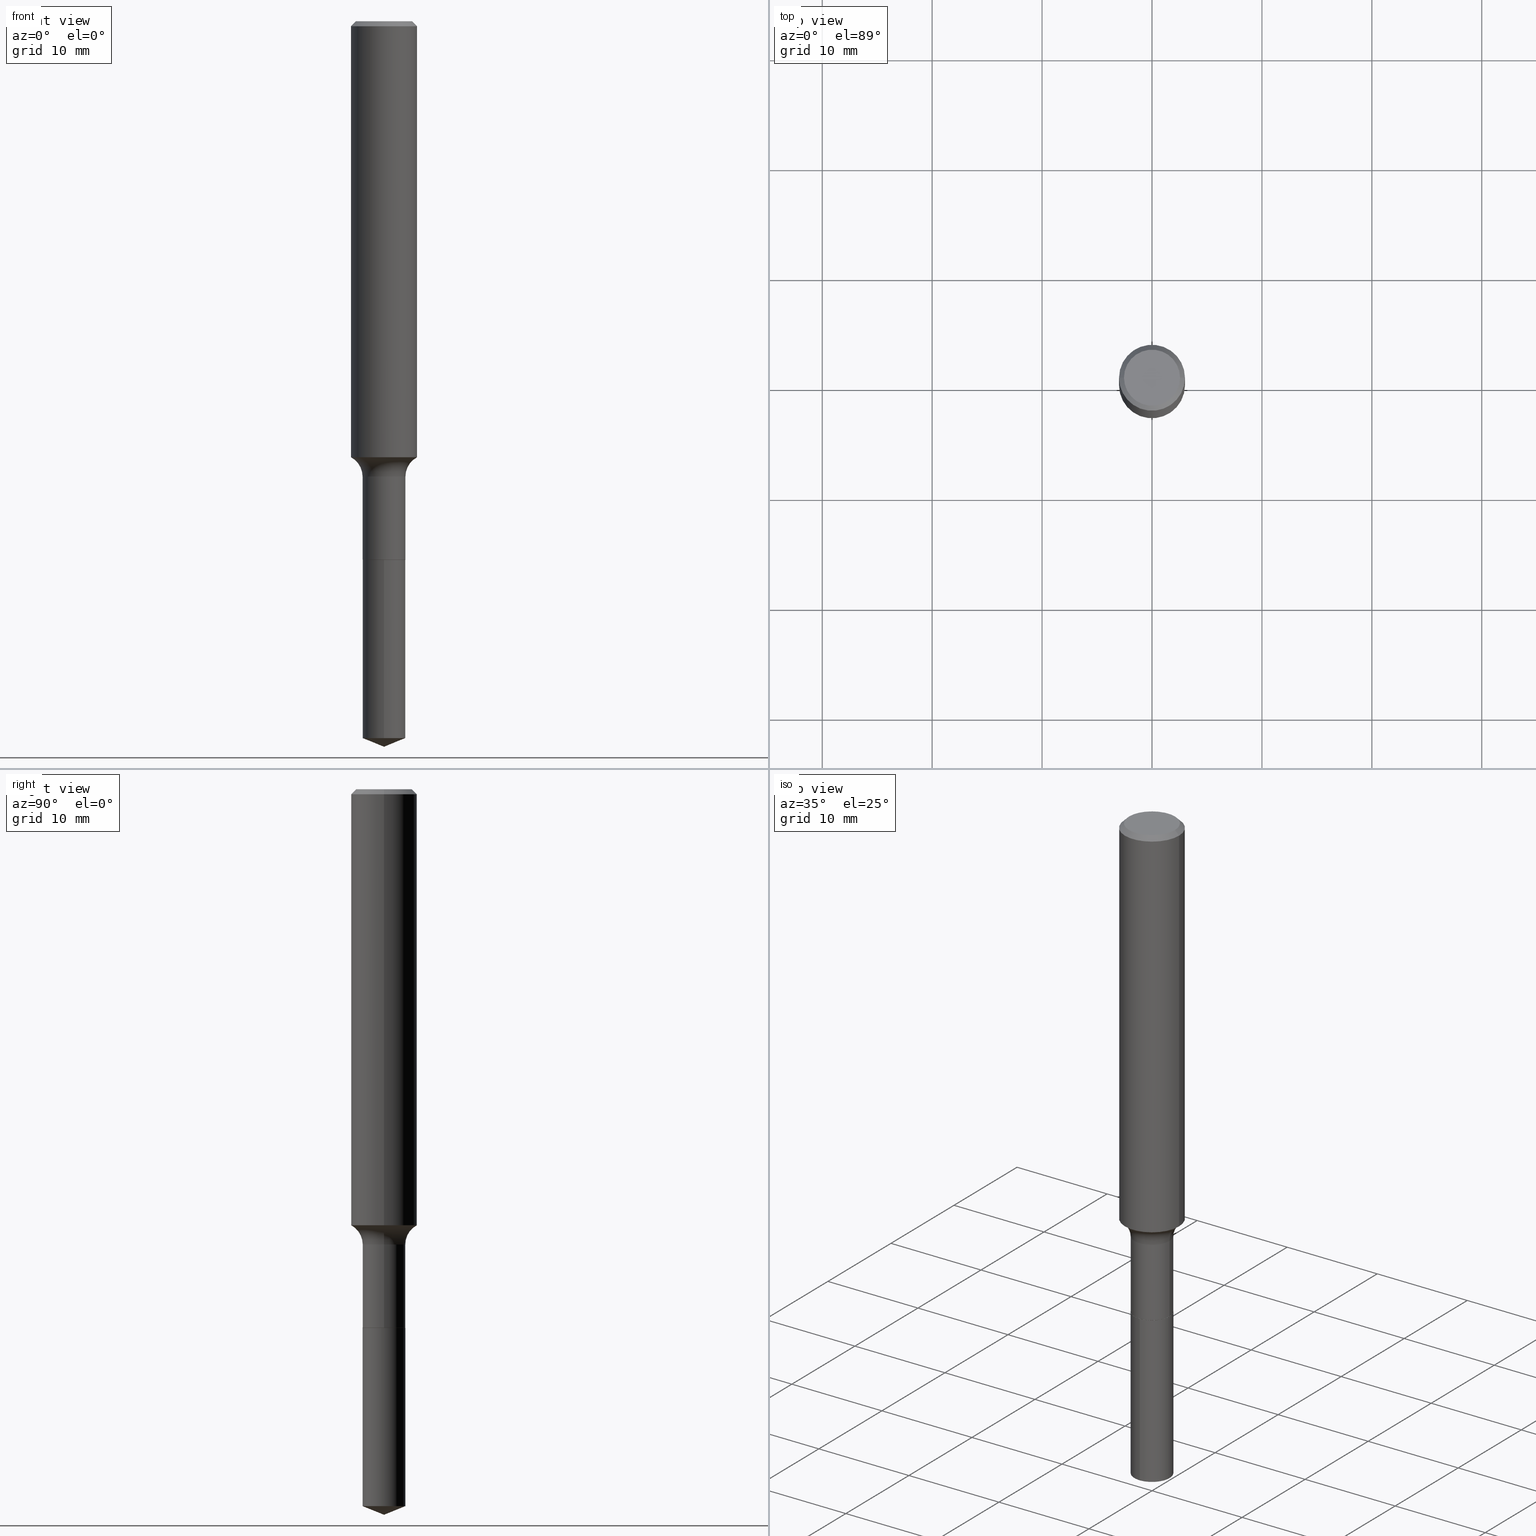
[diagram: canonical four-view strip — front | top / right | iso, engineering-drawing reading convention]
A machine part, canonical four-view strip (front | top / right | iso — engineering-drawing reading convention). The complete STEP part file that produces these views, byte-faithful:
ISO-10303-21;
HEADER;
FILE_DESCRIPTION (( 'STEP AP203' ),
    '1' );
FILE_NAME ('69129.STEP',
    '2024-04-19T17:16:34',
    ( '' ),
    ( '' ),
    'SwSTEP 2.0',
    'SolidWorks 2023',
    '' );
FILE_SCHEMA (( 'CONFIG_CONTROL_DESIGN' ));
ENDSEC;

DATA;
#1 = PRODUCT_DEFINITION_SHAPE ( 'NONE', 'NONE',  #196 ) ;
#2 = DIRECTION ( 'NONE',  ( -6.982962677686266711E-15, -1.000000000000000000, 3.491481338843145583E-15 ) ) ;
#3 = ORIENTED_EDGE ( 'NONE', *, *, #221, .F. ) ;
#4 = APPROVAL ( #119, 'UNSPECIFIED' ) ;
#5 = DIRECTION ( 'NONE',  ( 1.000000000000000000, -6.982962677686266711E-15, 0.000000000000000000 ) ) ;
#6 = DIRECTION ( 'NONE',  ( -6.982962677686265133E-15, -1.000000000000000000, 0.000000000000000000 ) ) ;
#7 = APPLICATION_PROTOCOL_DEFINITION ( 'international standard', 'config_control_design', 1994, #204 ) ;
#8 = CONICAL_SURFACE ( 'NONE', #468, 0.1180999999999999966, 0.7853981633974456145 ) ;
#9 = CLOSED_SHELL ( 'NONE', ( #78, #341, #273, #379, #406 ) ) ;
#10 = CYLINDRICAL_SURFACE ( 'NONE', #41, 0.07675000000000001266 ) ;
#11 = CC_DESIGN_APPROVAL ( #111, ( #176 ) ) ;
#12 = ORIENTED_EDGE ( 'NONE', *, *, #66, .T. ) ;
#13 = VERTEX_POINT ( 'NONE', #239 ) ;
#14 = DIRECTION ( 'NONE',  ( -2.445468806185136597E-29, 3.491481338843145583E-15, 1.000000000000000000 ) ) ;
#15 = CC_DESIGN_PERSON_AND_ORGANIZATION_ASSIGNMENT ( #96, #470, ( #176 ) ) ;
#16 = CALENDAR_DATE ( 2024, 19, 4 ) ;
#17 = CARTESIAN_POINT ( 'NONE',  ( -0.07674999999999997102, -5.667924066842443085E-15, -1.630500000000000060 ) ) ;
#18 = CIRCLE ( 'NONE', #169, 0.07674999999999999878 ) ;
#19 = VECTOR ( 'NONE', #229, 39.37007874015748143 ) ;
#20 = DIRECTION ( 'NONE',  ( -2.445468806185136597E-29, 3.491481338843145583E-15, 1.000000000000000000 ) ) ;
#21 = ORIENTED_EDGE ( 'NONE', *, *, #459, .T. ) ;
#22 = ADVANCED_FACE ( 'NONE', ( #396 ), #8, .T. ) ;
#23 = DIRECTION ( 'NONE',  ( -2.438088387897960049E-29, 3.491481338843145188E-15, 1.000000000000000000 ) ) ;
#24 = VERTEX_POINT ( 'NONE', #164 ) ;
#25 = DIRECTION ( 'NONE',  ( 1.000000000000000000, -6.982962677686273021E-15, 0.000000000000000000 ) ) ;
#26 = CONICAL_SURFACE ( 'NONE', #305, 97.44436430772901758, 1.186823891356147076 ) ;
#27 = LOCAL_TIME ( 13, 16, 34.00000000000000000, #324 ) ;
#28 = CARTESIAN_POINT ( 'NONE',  ( -8.928514629775024414E-28, 1.293024954018170944E-13, 36.77167874015748339 ) ) ;
#29 = ADVANCED_FACE ( 'NONE', ( #278 ), #388, .T. ) ;
#30 = CYLINDRICAL_SURFACE ( 'NONE', #322, 0.1181000000000001077 ) ;
#31 = FACE_OUTER_BOUND ( 'NONE', #492, .T. ) ;
#32 = ORIENTED_EDGE ( 'NONE', *, *, #52, .T. ) ;
#33 = AXIS2_PLACEMENT_3D ( 'NONE', #477, #408, #220 ) ;
#34 = LOCAL_TIME ( 13, 16, 34.00000000000000000, #246 ) ;
#35 = CARTESIAN_POINT ( 'NONE',  ( 4.717553874011746679E-29, -6.735416650762311704E-15, -1.929099999999999815 ) ) ;
#36 = EDGE_CURVE ( 'NONE', #24, #48, #313, .T. ) ;
#37 = CARTESIAN_POINT ( 'NONE',  ( -0.1180999999999999966, 7.628363003171413738E-16, -0.01771500000000010566 ) ) ;
#38 = ORIENTED_EDGE ( 'NONE', *, *, #454, .T. ) ;
#39 = DIRECTION ( 'NONE',  ( -2.445468806185136597E-29, 3.491481338843145583E-15, 1.000000000000000000 ) ) ;
#40 = EDGE_LOOP ( 'NONE', ( #148, #301, #240, #113 ) ) ;
#41 = AXIS2_PLACEMENT_3D ( 'NONE', #433, #283, #162 ) ;
#42 = FACE_OUTER_BOUND ( 'NONE', #394, .T. ) ;
#43 = AXIS2_PLACEMENT_3D ( 'NONE', #270, #109, #413 ) ;
#44 = ADVANCED_FACE ( 'NONE', ( #167 ), #321, .T. ) ;
#45 = APPROVAL_DATE_TIME ( #200, #4 ) ;
#46 = CARTESIAN_POINT ( 'NONE',  ( -5.359423855123736897E-16, -0.07675000000000672951, -1.929099999999999593 ) ) ;
#47 = DIRECTION ( 'NONE',  ( -2.445468806185136597E-29, 3.491481338843145583E-15, 1.000000000000000000 ) ) ;
#48 = VERTEX_POINT ( 'NONE', #426 ) ;
#49 = AXIS2_PLACEMENT_3D ( 'NONE', #201, #87, #89 ) ;
#50 = AXIS2_PLACEMENT_3D ( 'NONE', #116, #420, #79 ) ;
#51 = FACE_OUTER_BOUND ( 'NONE', #136, .T. ) ;
#52 = EDGE_CURVE ( 'NONE', #48, #24, #490, .T. ) ;
#53 = CARTESIAN_POINT ( 'NONE',  ( -0.1547499999999999709, -4.593295439394994118E-15, -1.630500000000000060 ) ) ;
#54 = SECURITY_CLASSIFICATION_LEVEL ( 'unclassified' ) ;
#55 = FACE_OUTER_BOUND ( 'NONE', #371, .T. ) ;
#56 = ADVANCED_FACE ( 'NONE', ( #51 ), #347, .T. ) ;
#57 = ORIENTED_EDGE ( 'NONE', *, *, #399, .T. ) ;
#58 = CALENDAR_DATE ( 2024, 19, 4 ) ;
#59 = DESIGN_CONTEXT ( 'detailed design', #143, 'design' ) ;
#60 = DIRECTION ( 'NONE',  ( -6.982962677686265133E-15, -1.000000000000000000, 3.498761904101806258E-15 ) ) ;
#61 = AXIS2_PLACEMENT_3D ( 'NONE', #416, #349, #338 ) ;
#62 = EDGE_CURVE ( 'NONE', #327, #13, #409, .T. ) ;
#63 = DIRECTION ( 'NONE',  ( 0.7071067811866199593, -2.468850131083015945E-15, 0.7071067811864750752 ) ) ;
#64 = ORIENTED_EDGE ( 'NONE', *, *, #317, .T. ) ;
#65 = CARTESIAN_POINT ( 'NONE',  ( 0.07674999999999999878, -7.269613295605313095E-15, -1.928600000000000092 ) ) ;
#66 = EDGE_CURVE ( 'NONE', #193, #400, #128, .T. ) ;
#67 = CARTESIAN_POINT ( 'NONE',  ( 4.717553874011746679E-29, -6.735416650762311704E-15, -1.929099999999999815 ) ) ;
#68 = VERTEX_POINT ( 'NONE', #17 ) ;
#69 = VECTOR ( 'NONE', #370, 39.37007874015748143 ) ;
#70 = DIRECTION ( 'NONE',  ( -2.445468806185136597E-29, 3.491481338843145583E-15, 1.000000000000000000 ) ) ;
#71 = CARTESIAN_POINT ( 'NONE',  ( -0.07674999999999998490, 5.453415496958767854E-16, -3.775282681770638931E-30 ) ) ;
#72 = CARTESIAN_POINT ( 'NONE',  ( 0.1181000000000001077, -8.246878922347488542E-16, 5.758764772215005345E-30 ) ) ;
#73 = ORIENTED_EDGE ( 'NONE', *, *, #373, .T. ) ;
#74 = CC_DESIGN_PERSON_AND_ORGANIZATION_ASSIGNMENT ( #355, #458, ( #196 ) ) ;
#75 = CIRCLE ( 'NONE', #144, 0.07674999999999999878 ) ;
#76 = DIRECTION ( 'NONE',  ( -2.445468806185136597E-29, 3.491481338843145583E-15, 1.000000000000000000 ) ) ;
#77 = APPROVAL_DATE_TIME ( #168, #111 ) ;
#78 = ADVANCED_FACE ( 'NONE', ( #158 ), #10, .T. ) ;
#79 = DIRECTION ( 'NONE',  ( 1.000000000000000000, -6.982962677686266711E-15, 0.000000000000000000 ) ) ;
#80 = DIRECTION ( 'NONE',  ( 7.105427357601001859E-15, 1.000000000000000000, -3.491481338843145583E-15 ) ) ;
#81 = CIRCLE ( 'NONE', #115, 0.1180999999999999966 ) ;
#82 = CIRCLE ( 'NONE', #451, 0.07674999999999999878 ) ;
#83 = LOCAL_TIME ( 13, 16, 34.00000000000000000, #207 ) ;
#84 = SHAPE_DEFINITION_REPRESENTATION ( #1, #203 ) ;
#85 = CARTESIAN_POINT ( 'NONE',  ( 0.000000000000000000, 0.000000000000000000, 0.000000000000000000 ) ) ;
#86 = APPROVAL_STATUS ( 'not_yet_approved' ) ;
#87 = DIRECTION ( 'NONE',  ( -2.428961463615744039E-29, 3.515120792942106906E-15, 1.000000000000000000 ) ) ;
#88 = LENGTH_MEASURE_WITH_UNIT ( LENGTH_MEASURE( 0.02539999999999999897 ), #248 );
#89 = DIRECTION ( 'NONE',  ( -6.982962677686265133E-15, -1.000000000000000000, 0.000000000000000000 ) ) ;
#90 = PERSON_AND_ORGANIZATION ( #381, #393 ) ;
#91 = AXIS2_PLACEMENT_3D ( 'NONE', #410, #369, #374 ) ;
#92 = ORIENTED_EDGE ( 'NONE', *, *, #94, .T. ) ;
#93 = PERSON_AND_ORGANIZATION_ROLE ( 'design_supplier' ) ;
#94 = EDGE_CURVE ( 'NONE', #120, #132, #75, .T. ) ;
#95 = CARTESIAN_POINT ( 'NONE',  ( 4.716331139608654438E-29, -6.733670910092890989E-15, -1.928600000000000092 ) ) ;
#96 = PERSON_AND_ORGANIZATION ( #381, #393 ) ;
#97 = LINE ( 'NONE', #402, #159 ) ;
#98 = ADVANCED_FACE ( 'NONE', ( #55 ), #331, .T. ) ;
#99 = VERTEX_POINT ( 'NONE', #46 ) ;
#100 = DIRECTION ( 'NONE',  ( -2.428961463615744039E-29, 3.515120792942106906E-15, 1.000000000000000000 ) ) ;
#101 = CIRCLE ( 'NONE', #50, 0.07624999999999999833 ) ;
#102 = DIRECTION ( 'NONE',  ( 1.000000000000000000, -6.982962677686268288E-15, 0.000000000000000000 ) ) ;
#103 = ADVANCED_FACE ( 'NONE', ( #195 ), #442, .F. ) ;
#104 = DIRECTION ( 'NONE',  ( 1.000000000000000000, -6.982962677686268288E-15, 4.883557194083113462E-29 ) ) ;
#105 = ORIENTED_EDGE ( 'NONE', *, *, #256, .F. ) ;
#106 = EDGE_CURVE ( 'NONE', #449, #99, #261, .T. ) ;
#107 = CARTESIAN_POINT ( 'NONE',  ( 5.453415496959241170E-16, 0.07674999999999326805, -1.929100000000000259 ) ) ;
#108 = CIRCLE ( 'NONE', #332, 0.07799999999999999989 ) ;
#109 = DIRECTION ( 'NONE',  ( 2.428961463615743758E-29, -3.515120792942106906E-15, -1.000000000000000000 ) ) ;
#110 = CARTESIAN_POINT ( 'NONE',  ( 0.1181000000000001909, -6.277148188467687568E-15, -1.561646695794609796 ) ) ;
#111 = APPROVAL ( #434, 'UNSPECIFIED' ) ;
#112 = CARTESIAN_POINT ( 'NONE',  ( -8.928514629775024414E-28, 1.293024954018170944E-13, 36.77167874015748339 ) ) ;
#113 = ORIENTED_EDGE ( 'NONE', *, *, #245, .F. ) ;
#114 = AXIS2_PLACEMENT_3D ( 'NONE', #479, #23, #175 ) ;
#115 = AXIS2_PLACEMENT_3D ( 'NONE', #155, #428, #463 ) ;
#116 = CARTESIAN_POINT ( 'NONE',  ( 4.717553874011746679E-29, -6.735416650762311704E-15, -1.929099999999999815 ) ) ;
#117 = ORIENTED_EDGE ( 'NONE', *, *, #106, .F. ) ;
#118 = FACE_OUTER_BOUND ( 'NONE', #486, .T. ) ;
#119 = APPROVAL_STATUS ( 'not_yet_approved' ) ;
#120 = VERTEX_POINT ( 'NONE', #65 ) ;
#121 = AXIS2_PLACEMENT_3D ( 'NONE', #179, #70, #104 ) ;
#122 = APPROVAL_ROLE ( '' ) ;
#123 = VECTOR ( 'NONE', #265, 39.37007874015748854 ) ;
#124 = ORIENTED_EDGE ( 'NONE', *, *, #237, .F. ) ;
#125 = VERTEX_POINT ( 'NONE', #174 ) ;
#126 = ADVANCED_FACE ( 'NONE', ( #296 ), #30, .T. ) ;
#127 = APPLICATION_PROTOCOL_DEFINITION ( 'international standard', 'config_control_design', 1994, #143 ) ;
#128 = LINE ( 'NONE', #429, #226 ) ;
#129 = EDGE_CURVE ( 'NONE', #48, #99, #361, .T. ) ;
#130 = APPROVAL_ROLE ( '' ) ;
#131 = CIRCLE ( 'NONE', #462, 0.1003850000000000159 ) ;
#132 = VERTEX_POINT ( 'NONE', #337 ) ;
#133 = EDGE_CURVE ( 'NONE', #132, #120, #18, .T. ) ;
#134 = DATE_TIME_ROLE ( 'classification_date' ) ;
#135 = DIRECTION ( 'NONE',  ( 2.445468806185136597E-29, -3.491481338843145583E-15, -1.000000000000000000 ) ) ;
#136 = EDGE_LOOP ( 'NONE', ( #178, #414, #180, #223 ) ) ;
#137 = CARTESIAN_POINT ( 'NONE',  ( 0.07624999999999999833, -7.267867554935889225E-15, -1.929099999999999815 ) ) ;
#138 = FACE_OUTER_BOUND ( 'NONE', #40, .T. ) ;
#139 = CIRCLE ( 'NONE', #292, 0.1003850000000000159 ) ;
#140 = ORIENTED_EDGE ( 'NONE', *, *, #450, .F. ) ;
#141 = FACE_OUTER_BOUND ( 'NONE', #464, .T. ) ;
#142 = CARTESIAN_POINT ( 'NONE',  ( 4.717553874011746679E-29, -6.735416650762311704E-15, -1.929099999999999815 ) ) ;
#143 = APPLICATION_CONTEXT ( 'configuration controlled 3d designs of mechanical parts and assemblies' ) ;
#144 = AXIS2_PLACEMENT_3D ( 'NONE', #95, #391, #249 ) ;
#145 = APPROVAL_PERSON_ORGANIZATION ( #251, #111, #401 ) ;
#146 = ADVANCED_FACE ( 'NONE', ( #141 ), #252, .F. ) ;
#147 = CARTESIAN_POINT ( 'NONE',  ( 5.453415496959397956E-16, 0.07674999999999326805, -1.929100000000000259 ) ) ;
#148 = ORIENTED_EDGE ( 'NONE', *, *, #427, .F. ) ;
#149 = LINE ( 'NONE', #344, #19 ) ;
#150 = ORIENTED_EDGE ( 'NONE', *, *, #106, .T. ) ;
#151 = DIRECTION ( 'NONE',  ( -0.7071067811866199593, 7.493145998870616062E-15, 0.7071067811864750752 ) ) ;
#152 = AXIS2_PLACEMENT_3D ( 'NONE', #242, #135, #326 ) ;
#153 = CARTESIAN_POINT ( 'NONE',  ( 6.375660570259202509E-29, -9.042484126576158493E-15, -2.598399999999999821 ) ) ;
#154 = PRODUCT ( '69129', '69129', '', ( #235 ) ) ;
#155 = CARTESIAN_POINT ( 'NONE',  ( 4.332147990156995868E-31, -6.185159191760669162E-17, -0.01771500000000010566 ) ) ;
#156 = ORIENTED_EDGE ( 'NONE', *, *, #454, .F. ) ;
#157 = PERSON_AND_ORGANIZATION ( #381, #393 ) ;
#158 = FACE_OUTER_BOUND ( 'NONE', #368, .T. ) ;
#159 = VECTOR ( 'NONE', #172, 39.37007874015748143 ) ;
#160 = CARTESIAN_POINT ( 'NONE',  ( 4.717553874011746679E-29, -6.735416650762311704E-15, -1.929099999999999815 ) ) ;
#161 = EDGE_CURVE ( 'NONE', #24, #449, #481, .T. ) ;
#162 = DIRECTION ( 'NONE',  ( -6.982962677686265133E-15, -1.000000000000000000, 3.559411066663534686E-15 ) ) ;
#163 = DIRECTION ( 'NONE',  ( -2.445468806185136597E-29, 3.491481338843145583E-15, 1.000000000000000000 ) ) ;
#164 = CARTESIAN_POINT ( 'NONE',  ( 5.453415496959396970E-16, 0.07674999999999104761, -2.567390987167151639 ) ) ;
#165 = ORIENTED_EDGE ( 'NONE', *, *, #269, .F. ) ;
#166 = COORDINATED_UNIVERSAL_TIME_OFFSET ( 5, 0, .BEHIND. ) ;
#167 = FACE_OUTER_BOUND ( 'NONE', #380, .T. ) ;
#168 = DATE_AND_TIME ( #16, #83 ) ;
#169 = AXIS2_PLACEMENT_3D ( 'NONE', #330, #259, #25 ) ;
#170 = LOCAL_TIME ( 13, 16, 34.00000000000000000, #166 ) ;
#171 = CARTESIAN_POINT ( 'NONE',  ( 4.717553874011746679E-29, -6.735416650762311704E-15, -1.929099999999999815 ) ) ;
#172 = DIRECTION ( 'NONE',  ( -2.445468806185136877E-29, 3.491481338843145188E-15, 1.000000000000000000 ) ) ;
#173 = ORIENTED_EDGE ( 'NONE', *, *, #317, .F. ) ;
#174 = CARTESIAN_POINT ( 'NONE',  ( 0.07674999999999997102, -6.228802708496169280E-15, -1.630500000000000060 ) ) ;
#175 = DIRECTION ( 'NONE',  ( 1.000000000000000000, -6.982962677686265922E-15, 4.876176775795935793E-29 ) ) ;
#176 = SECURITY_CLASSIFICATION ( '', '', #54 ) ;
#177 = DIRECTION ( 'NONE',  ( -2.445468806185136597E-29, 3.491481338843145583E-15, 1.000000000000000000 ) ) ;
#178 = ORIENTED_EDGE ( 'NONE', *, *, #66, .F. ) ;
#179 = CARTESIAN_POINT ( 'NONE',  ( 3.987336888484864983E-29, -5.692860322983748752E-15, -1.630500000000000060 ) ) ;
#180 = ORIENTED_EDGE ( 'NONE', *, *, #359, .T. ) ;
#181 = ADVANCED_FACE ( 'NONE', ( #138 ), #258, .T. ) ;
#182 = DIRECTION ( 'NONE',  ( 1.000000000000000000, -6.982962677686268288E-15, 4.883557194083113462E-29 ) ) ;
#183 = CIRCLE ( 'NONE', #33, 0.07674999999999997102 ) ;
#184 = CIRCLE ( 'NONE', #339, 0.07674999999999997102 ) ;
#185 = PLANE ( 'NONE',  #61 ) ;
#186 = ORIENTED_EDGE ( 'NONE', *, *, #129, .T. ) ;
#187 = DIRECTION ( 'NONE',  ( -2.428961463615744039E-29, 3.515120792942106906E-15, 1.000000000000000000 ) ) ;
#188 = EDGE_LOOP ( 'NONE', ( #419, #150 ) ) ;
#189 = EDGE_CURVE ( 'NONE', #421, #193, #139, .T. ) ;
#190 = VERTEX_POINT ( 'NONE', #333 ) ;
#191 = AXIS2_PLACEMENT_3D ( 'NONE', #53, #80, #342 ) ;
#192 = DIRECTION ( 'NONE',  ( -6.982962677686265133E-15, -1.000000000000000000, 3.498761904101806258E-15 ) ) ;
#193 = VERTEX_POINT ( 'NONE', #297 ) ;
#194 = DIRECTION ( 'NONE',  ( 1.000000000000000000, -6.982962677686266711E-15, 4.875668750515085695E-29 ) ) ;
#195 = FACE_OUTER_BOUND ( 'NONE', #461, .T. ) ;
#196 = PRODUCT_DEFINITION ( 'UNKNOWN', '', #228, #59 ) ;
#197 = DIRECTION ( 'NONE',  ( 1.000000000000000000, -6.982962677686268288E-15, 0.000000000000000000 ) ) ;
#198 = PERSON_AND_ORGANIZATION ( #381, #393 ) ;
#199 = ORIENTED_EDGE ( 'NONE', *, *, #129, .F. ) ;
#200 = DATE_AND_TIME ( #395, #34 ) ;
#201 = CARTESIAN_POINT ( 'NONE',  ( 6.267938084414010442E-29, -8.979086571701111052E-15, -2.567390987167151639 ) ) ;
#202 = EDGE_CURVE ( 'NONE', #120, #125, #97, .T. ) ;
#203 = ADVANCED_BREP_SHAPE_REPRESENTATION ( '69129', ( #281, #280, #424 ), #323 ) ;
#204 = APPLICATION_CONTEXT ( 'configuration controlled 3d designs of mechanical parts and assemblies' ) ;
#205 = DIRECTION ( 'NONE',  ( -2.445468806185136597E-29, 3.491481338843145583E-15, 1.000000000000000000 ) ) ;
#206 = DIRECTION ( 'NONE',  ( 1.000000000000000000, -6.982962677686266711E-15, 4.876176775795935793E-29 ) ) ;
#207 = COORDINATED_UNIVERSAL_TIME_OFFSET ( 5, 0, .BEHIND. ) ;
#208 = VECTOR ( 'NONE', #435, 39.37007874015748143 ) ;
#209 = CC_DESIGN_SECURITY_CLASSIFICATION ( #176, ( #228 ) ) ;
#210 = DIRECTION ( 'NONE',  ( 1.000000000000000000, -6.982962677686266711E-15, 4.876176775795935793E-29 ) ) ;
#211 = DIRECTION ( 'NONE',  ( -6.474490251793184940E-15, -0.9271838545667872022, 0.3746065934159125699 ) ) ;
#212 = ORIENTED_EDGE ( 'NONE', *, *, #480, .F. ) ;
#213 = CC_DESIGN_PERSON_AND_ORGANIZATION_ASSIGNMENT ( #432, #93, ( #228 ) ) ;
#214 = CARTESIAN_POINT ( 'NONE',  ( 0.000000000000000000, 0.000000000000000000, 0.000000000000000000 ) ) ;
#215 = ORIENTED_EDGE ( 'NONE', *, *, #221, .T. ) ;
#216 = LINE ( 'NONE', #366, #460 ) ;
#217 = AXIS2_PLACEMENT_3D ( 'NONE', #85, #47, #289 ) ;
#218 = AXIS2_PLACEMENT_3D ( 'NONE', #112, #298, #192 ) ;
#219 = EDGE_LOOP ( 'NONE', ( #417, #232, #309, #140 ) ) ;
#220 = DIRECTION ( 'NONE',  ( 1.000000000000000000, -6.982962677686261977E-15, 0.000000000000000000 ) ) ;
#221 = EDGE_CURVE ( 'NONE', #13, #327, #438, .T. ) ;
#222 = CARTESIAN_POINT ( 'NONE',  ( 4.717553874011746679E-29, -6.735416650762311704E-15, -1.929099999999999815 ) ) ;
#223 = ORIENTED_EDGE ( 'NONE', *, *, #279, .T. ) ;
#224 = VERTEX_POINT ( 'NONE', #290 ) ;
#225 = DIRECTION ( 'NONE',  ( -2.445468806185136877E-29, 3.491481338843145188E-15, 1.000000000000000000 ) ) ;
#226 = VECTOR ( 'NONE', #352, 39.37007874015748854 ) ;
#227 = ORIENTED_EDGE ( 'NONE', *, *, #367, .F. ) ;
#228 = PRODUCT_DEFINITION_FORMATION_WITH_SPECIFIED_SOURCE ( 'ANY', '', #154, .NOT_KNOWN. ) ;
#229 = DIRECTION ( 'NONE',  ( -2.445468806185136877E-29, 3.491481338843145188E-15, 1.000000000000000000 ) ) ;
#230 = ORIENTED_EDGE ( 'NONE', *, *, #202, .F. ) ;
#231 = LINE ( 'NONE', #302, #299 ) ;
#232 = ORIENTED_EDGE ( 'NONE', *, *, #334, .T. ) ;
#233 = CARTESIAN_POINT ( 'NONE',  ( 6.311413467059148763E-29, -9.133689868380769455E-15, -2.598399999999999821 ) ) ;
#234 = APPROVAL_PERSON_ORGANIZATION ( #157, #291, #130 ) ;
#235 = MECHANICAL_CONTEXT ( 'NONE', #204, 'mechanical' ) ;
#236 = DIRECTION ( 'NONE',  ( -2.445468806185136597E-29, 3.491481338843145583E-15, 1.000000000000000000 ) ) ;
#237 = EDGE_CURVE ( 'NONE', #224, #120, #472, .T. ) ;
#238 = PERSON_AND_ORGANIZATION ( #381, #393 ) ;
#239 = CARTESIAN_POINT ( 'NONE',  ( -0.1181000000000001909, -4.613309325300259530E-15, -1.561646695794609796 ) ) ;
#240 = ORIENTED_EDGE ( 'NONE', *, *, #202, .T. ) ;
#241 =( NAMED_UNIT ( * ) SI_UNIT ( $, .STERADIAN. ) SOLID_ANGLE_UNIT ( ) );
#242 = CARTESIAN_POINT ( 'NONE',  ( 4.332147990156995868E-31, -6.185159191760669162E-17, -0.01771500000000010566 ) ) ;
#243 = ORIENTED_EDGE ( 'NONE', *, *, #310, .F. ) ;
#244 = CONICAL_SURFACE ( 'NONE', #267, 0.07624999999999999833, 0.7853981633975507526 ) ;
#245 = EDGE_CURVE ( 'NONE', #68, #125, #183, .T. ) ;
#246 = COORDINATED_UNIVERSAL_TIME_OFFSET ( 5, 0, .BEHIND. ) ;
#247 = ORIENTED_EDGE ( 'NONE', *, *, #399, .F. ) ;
#248 =( LENGTH_UNIT ( ) NAMED_UNIT ( * ) SI_UNIT ( $, .METRE. ) );
#249 = DIRECTION ( 'NONE',  ( 1.000000000000000000, -6.982962677686273021E-15, 0.000000000000000000 ) ) ;
#250 = ORIENTED_EDGE ( 'NONE', *, *, #367, .T. ) ;
#251 = PERSON_AND_ORGANIZATION ( #381, #393 ) ;
#252 = PLANE ( 'NONE',  #114 ) ;
#253 = CIRCLE ( 'NONE', #91, 0.1180999999999999966 ) ;
#254 = AXIS2_PLACEMENT_3D ( 'NONE', #160, #163, #5 ) ;
#255 = DIRECTION ( 'NONE',  ( -6.982962677686265922E-15, -1.000000000000000000, 3.559411066663535475E-15 ) ) ;
#256 = EDGE_CURVE ( 'NONE', #99, #449, #82, .T. ) ;
#257 = ORIENTED_EDGE ( 'NONE', *, *, #189, .T. ) ;
#258 = CYLINDRICAL_SURFACE ( 'NONE', #360, 0.07674999999999998490 ) ;
#259 = DIRECTION ( 'NONE',  ( -2.445468806185136597E-29, 3.491481338843145583E-15, 1.000000000000000000 ) ) ;
#260 = DIRECTION ( 'NONE',  ( 1.000000000000000000, -6.982962677686265922E-15, 4.876176775795935793E-29 ) ) ;
#261 = CIRCLE ( 'NONE', #415, 0.07674999999999999878 ) ;
#262 = AXIS2_PLACEMENT_3D ( 'NONE', #382, #452, #182 ) ;
#263 = ORIENTED_EDGE ( 'NONE', *, *, #52, .F. ) ;
#264 = CARTESIAN_POINT ( 'NONE',  ( -0.1003850000000000159, 7.319105043583386689E-16, -2.868857591683090262E-17 ) ) ;
#265 = DIRECTION ( 'NONE',  ( 6.588037525764796813E-15, 0.9271838545667896447, 0.3746065934159059085 ) ) ;
#266 = FACE_OUTER_BOUND ( 'NONE', #365, .T. ) ;
#267 = AXIS2_PLACEMENT_3D ( 'NONE', #35, #76, #485 ) ;
#268 = DIRECTION ( 'NONE',  ( -0.7071067811865455743, 2.468850131082236945E-15, -0.7071067811865493491 ) ) ;
#269 = EDGE_CURVE ( 'NONE', #354, #48, #216, .T. ) ;
#270 = CARTESIAN_POINT ( 'NONE',  ( 4.717553874011746679E-29, -6.735416650762311704E-15, -1.929099999999999815 ) ) ;
#271 = ORIENTED_EDGE ( 'NONE', *, *, #427, .T. ) ;
#272 = COORDINATED_UNIVERSAL_TIME_OFFSET ( 5, 0, .BEHIND. ) ;
#273 = ADVANCED_FACE ( 'NONE', ( #362 ), #26, .T. ) ;
#274 = AXIS2_PLACEMENT_3D ( 'NONE', #171, #471, #386 ) ;
#275 = CALENDAR_DATE ( 2024, 19, 4 ) ;
#276 = CARTESIAN_POINT ( 'NONE',  ( 0.000000000000000000, 0.000000000000000000, 0.000000000000000000 ) ) ;
#277 = CARTESIAN_POINT ( 'NONE',  ( 7.015701749847187307E-46, -1.001656274515824970E-31, -2.868857591682589212E-17 ) ) ;
#278 = FACE_OUTER_BOUND ( 'NONE', #219, .T. ) ;
#279 = EDGE_CURVE ( 'NONE', #311, #400, #253, .T. ) ;
#280 = MANIFOLD_SOLID_BREP ( 'Body-Move/Copy2[2]', #431 ) ;
#281 = MANIFOLD_SOLID_BREP ( 'Body-Move/Copy2[1]', #9 ) ;
#282 = DIRECTION ( 'NONE',  ( 0.000000000000000000, 0.000000000000000000, 1.000000000000000000 ) ) ;
#283 = DIRECTION ( 'NONE',  ( -2.428961463615744039E-29, 3.515120792942106906E-15, 1.000000000000000000 ) ) ;
#284 = ADVANCED_FACE ( 'NONE', ( #42 ), #185, .F. ) ;
#285 = VECTOR ( 'NONE', #268, 39.37007874015748854 ) ;
#286 = PERSON_AND_ORGANIZATION_ROLE ( 'creator' ) ;
#287 = CARTESIAN_POINT ( 'NONE',  ( 6.267938084414010442E-29, -8.979086571701111052E-15, -2.567390987167151639 ) ) ;
#288 = DATE_AND_TIME ( #58, #27 ) ;
#289 = DIRECTION ( 'NONE',  ( 1.000000000000000000, -6.982962677686265922E-15, 4.876176775795935793E-29 ) ) ;
#290 = CARTESIAN_POINT ( 'NONE',  ( 0.07624999999999999833, -7.267867554935889225E-15, -1.929099999999999815 ) ) ;
#291 = APPROVAL ( #86, 'UNSPECIFIED' ) ;
#292 = AXIS2_PLACEMENT_3D ( 'NONE', #294, #177, #439 ) ;
#293 = LOCAL_TIME ( 13, 16, 34.00000000000000000, #272 ) ;
#294 = CARTESIAN_POINT ( 'NONE',  ( 7.015701749847187307E-46, -1.001656274515824970E-31, -2.868857591682589212E-17 ) ) ;
#295 = ORIENTED_EDGE ( 'NONE', *, *, #36, .F. ) ;
#296 = FACE_OUTER_BOUND ( 'NONE', #489, .T. ) ;
#297 = CARTESIAN_POINT ( 'NONE',  ( 0.1003850000000000159, -7.803837484803599345E-16, -2.868857591682071522E-17 ) ) ;
#298 = DIRECTION ( 'NONE',  ( -2.428961463615744039E-29, 3.515120792942106906E-15, 1.000000000000000000 ) ) ;
#299 = VECTOR ( 'NONE', #151, 39.37007874015748143 ) ;
#300 = LINE ( 'NONE', #153, #123 ) ;
#301 = ORIENTED_EDGE ( 'NONE', *, *, #133, .T. ) ;
#302 = CARTESIAN_POINT ( 'NONE',  ( -0.07624999999999999833, -6.193627814745235028E-15, -1.929099999999999815 ) ) ;
#303 = ORIENTED_EDGE ( 'NONE', *, *, #480, .T. ) ;
#304 = FACE_OUTER_BOUND ( 'NONE', #343, .T. ) ;
#305 = AXIS2_PLACEMENT_3D ( 'NONE', #28, #441, #60 ) ;
#306 = ORIENTED_EDGE ( 'NONE', *, *, #373, .F. ) ;
#307 = CC_DESIGN_APPROVAL ( #291, ( #228 ) ) ;
#308 = FACE_OUTER_BOUND ( 'NONE', #188, .T. ) ;
#309 = ORIENTED_EDGE ( 'NONE', *, *, #459, .F. ) ;
#310 = EDGE_CURVE ( 'NONE', #13, #68, #314, .T. ) ;
#311 = VERTEX_POINT ( 'NONE', #444 ) ;
#312 = ORIENTED_EDGE ( 'NONE', *, *, #94, .F. ) ;
#313 = CIRCLE ( 'NONE', #49, 0.07675000000000002653 ) ;
#314 = CIRCLE ( 'NONE', #191, 0.07799999999999999989 ) ;
#315 = DIRECTION ( 'NONE',  ( 1.000000000000000000, 0.000000000000000000, 0.000000000000000000 ) ) ;
#316 = CARTESIAN_POINT ( 'NONE',  ( 4.332147990156995868E-31, -6.185159191760669162E-17, -0.01771500000000010566 ) ) ;
#317 = EDGE_CURVE ( 'NONE', #327, #125, #108, .T. ) ;
#318 = DIRECTION ( 'NONE',  ( -2.428961463615744039E-29, 3.515120792942106906E-15, 1.000000000000000000 ) ) ;
#319 = ADVANCED_FACE ( 'NONE', ( #118 ), #244, .T. ) ;
#320 = CALENDAR_DATE ( 2024, 19, 4 ) ;
#321 = CYLINDRICAL_SURFACE ( 'NONE', #217, 0.07674999999999998490 ) ;
#322 = AXIS2_PLACEMENT_3D ( 'NONE', #214, #364, #210 ) ;
#323 =( GEOMETRIC_REPRESENTATION_CONTEXT ( 3 ) GLOBAL_UNCERTAINTY_ASSIGNED_CONTEXT ( ( #325 ) ) GLOBAL_UNIT_ASSIGNED_CONTEXT ( ( #385, #357, #241 ) ) REPRESENTATION_CONTEXT ( 'NONE', 'WORKASPACE' ) );
#324 = COORDINATED_UNIVERSAL_TIME_OFFSET ( 5, 0, .BEHIND. ) ;
#325 = UNCERTAINTY_MEASURE_WITH_UNIT (LENGTH_MEASURE( 1.000000000000000082E-05 ), #385, 'distance_accuracy_value', 'NONE');
#326 = DIRECTION ( 'NONE',  ( -1.000000000000000000, 6.982962677686266711E-15, 0.000000000000000000 ) ) ;
#327 = VERTEX_POINT ( 'NONE', #110 ) ;
#328 = CC_DESIGN_PERSON_AND_ORGANIZATION_ASSIGNMENT ( #238, #286, ( #228 ) ) ;
#329 = DIRECTION ( 'NONE',  ( -6.982962677686265922E-15, -1.000000000000000000, 3.559411066663535475E-15 ) ) ;
#330 = CARTESIAN_POINT ( 'NONE',  ( 4.716331139608654438E-29, -6.733670910092890989E-15, -1.928600000000000092 ) ) ;
#331 = CONICAL_SURFACE ( 'NONE', #274, 0.07624999999999999833, 0.7853981633975507526 ) ;
#332 = AXIS2_PLACEMENT_3D ( 'NONE', #448, #2, #491 ) ;
#333 = CARTESIAN_POINT ( 'NONE',  ( -0.07624999999999999833, -6.190978587571123827E-15, -1.929099999999999815 ) ) ;
#334 = EDGE_CURVE ( 'NONE', #13, #311, #149, .T. ) ;
#335 = ORIENTED_EDGE ( 'NONE', *, *, #161, .T. ) ;
#336 = DIRECTION ( 'NONE',  ( -2.428961463615744319E-29, 3.515120792942106906E-15, 1.000000000000000000 ) ) ;
#337 = CARTESIAN_POINT ( 'NONE',  ( -0.07674999999999999878, -5.667924066842443085E-15, -1.928600000000000092 ) ) ;
#338 = DIRECTION ( 'NONE',  ( -1.000000000000000000, 6.982962677686265922E-15, -4.876176775795935793E-29 ) ) ;
#339 = AXIS2_PLACEMENT_3D ( 'NONE', #378, #39, #483 ) ;
#340 = ORIENTED_EDGE ( 'NONE', *, *, #359, .F. ) ;
#341 = ADVANCED_FACE ( 'NONE', ( #266 ), #348, .T. ) ;
#342 = DIRECTION ( 'NONE',  ( -1.000000000000000000, 7.105427357600997914E-15, 0.000000000000000000 ) ) ;
#343 = EDGE_LOOP ( 'NONE', ( #345, #372, #186, #117 ) ) ;
#344 = CARTESIAN_POINT ( 'NONE',  ( -0.1181000000000001077, 8.391509709326790846E-16, -5.809262341591049389E-30 ) ) ;
#345 = ORIENTED_EDGE ( 'NONE', *, *, #161, .F. ) ;
#346 = CARTESIAN_POINT ( 'NONE',  ( 0.1180999999999999966, -8.865394841523547570E-16, -0.01771500000000010566 ) ) ;
#347 = CONICAL_SURFACE ( 'NONE', #152, 0.1180999999999999966, 0.7853981633974456145 ) ;
#348 = CONICAL_SURFACE ( 'NONE', #218, 97.44436430772901758, 1.186823891356147076 ) ;
#349 = DIRECTION ( 'NONE',  ( 2.438088387897960049E-29, -3.491481338843145188E-15, -1.000000000000000000 ) ) ;
#350 = DATE_TIME_ROLE ( 'creation_date' ) ;
#351 = ORIENTED_EDGE ( 'NONE', *, *, #237, .T. ) ;
#352 = DIRECTION ( 'NONE',  ( 0.7071067811865455743, -7.319954787623248157E-15, -0.7071067811865493491 ) ) ;
#353 = PERSON_AND_ORGANIZATION_ROLE ( 'design_owner' ) ;
#354 = VERTEX_POINT ( 'NONE', #233 ) ;
#355 = PERSON_AND_ORGANIZATION ( #381, #393 ) ;
#356 = DIRECTION ( 'NONE',  ( -1.000000000000000000, 6.982962677686266711E-15, 0.000000000000000000 ) ) ;
#357 =( NAMED_UNIT ( * ) PLANE_ANGLE_UNIT ( ) SI_UNIT ( $, .RADIAN. ) );
#358 = ORIENTED_EDGE ( 'NONE', *, *, #363, .T. ) ;
#359 = EDGE_CURVE ( 'NONE', #421, #311, #376, .T. ) ;
#360 = AXIS2_PLACEMENT_3D ( 'NONE', #473, #20, #260 ) ;
#361 = LINE ( 'NONE', #405, #422 ) ;
#362 = FACE_OUTER_BOUND ( 'NONE', #445, .T. ) ;
#363 = EDGE_CURVE ( 'NONE', #190, #224, #101, .T. ) ;
#364 = DIRECTION ( 'NONE',  ( -2.445468806185136597E-29, 3.491481338843145583E-15, 1.000000000000000000 ) ) ;
#365 = EDGE_LOOP ( 'NONE', ( #165, #250, #263 ) ) ;
#366 = CARTESIAN_POINT ( 'NONE',  ( 6.311413467059148763E-29, -9.133689868380772610E-15, -2.598399999999999821 ) ) ;
#367 = EDGE_CURVE ( 'NONE', #354, #24, #300, .T. ) ;
#368 = EDGE_LOOP ( 'NONE', ( #32, #335, #105, #199 ) ) ;
#369 = DIRECTION ( 'NONE',  ( -2.445468806185136597E-29, 3.491481338843145583E-15, 1.000000000000000000 ) ) ;
#370 = DIRECTION ( 'NONE',  ( -2.445468806185136877E-29, 3.491481338843145188E-15, 1.000000000000000000 ) ) ;
#371 = EDGE_LOOP ( 'NONE', ( #303, #73, #312, #124 ) ) ;
#372 = ORIENTED_EDGE ( 'NONE', *, *, #36, .T. ) ;
#373 = EDGE_CURVE ( 'NONE', #190, #132, #231, .T. ) ;
#374 = DIRECTION ( 'NONE',  ( 1.000000000000000000, -6.982962677686266711E-15, 0.000000000000000000 ) ) ;
#375 = TOROIDAL_SURFACE ( 'NONE', #262, 0.1547499999999999709, 0.07799999999999999989 ) ;
#376 = LINE ( 'NONE', #37, #285 ) ;
#377 = ORIENTED_EDGE ( 'NONE', *, *, #269, .T. ) ;
#378 = CARTESIAN_POINT ( 'NONE',  ( 3.987336888484864983E-29, -5.692860322983748752E-15, -1.630500000000000060 ) ) ;
#379 = ADVANCED_FACE ( 'NONE', ( #304 ), #418, .T. ) ;
#380 = EDGE_LOOP ( 'NONE', ( #92, #271, #247, #230 ) ) ;
#381 = PERSON ( 'UNSPECIFIED', 'UNSPECIFIED', 'UNSPECIFIED', ('UNSPECIFIED'), ('UNSPECIFIED'), ('UNSPECIFIED') ) ;
#382 = CARTESIAN_POINT ( 'NONE',  ( 3.987336888484864983E-29, -5.692860322983748752E-15, -1.630500000000000060 ) ) ;
#383 = AXIS2_PLACEMENT_3D ( 'NONE', #287, #318, #6 ) ;
#384 = CC_DESIGN_APPROVAL ( #4, ( #196 ) ) ;
#385 =( CONVERSION_BASED_UNIT ( 'INCH', #88 ) LENGTH_UNIT ( ) NAMED_UNIT ( #436 ) );
#386 = DIRECTION ( 'NONE',  ( 1.000000000000000000, -6.982962677686266711E-15, 0.000000000000000000 ) ) ;
#387 = CARTESIAN_POINT ( 'NONE',  ( 0.000000000000000000, 0.000000000000000000, 0.000000000000000000 ) ) ;
#388 = CYLINDRICAL_SURFACE ( 'NONE', #403, 0.1181000000000001077 ) ;
#389 = ORIENTED_EDGE ( 'NONE', *, *, #363, .F. ) ;
#390 = ADVANCED_FACE ( 'NONE', ( #31 ), #375, .F. ) ;
#391 = DIRECTION ( 'NONE',  ( -2.445468806185136597E-29, 3.491481338843145583E-15, 1.000000000000000000 ) ) ;
#392 = AXIS2_PLACEMENT_3D ( 'NONE', #440, #437, #102 ) ;
#393 = ORGANIZATION ( 'UNSPECIFIED', 'UNSPECIFIED', '' ) ;
#394 = EDGE_LOOP ( 'NONE', ( #257, #38 ) ) ;
#395 = CALENDAR_DATE ( 2024, 19, 4 ) ;
#396 = FACE_OUTER_BOUND ( 'NONE', #430, .T. ) ;
#397 = DATE_AND_TIME ( #275, #293 ) ;
#398 = ORIENTED_EDGE ( 'NONE', *, *, #334, .F. ) ;
#399 = EDGE_CURVE ( 'NONE', #125, #68, #184, .T. ) ;
#400 = VERTEX_POINT ( 'NONE', #346 ) ;
#401 = APPROVAL_ROLE ( '' ) ;
#402 = CARTESIAN_POINT ( 'NONE',  ( 0.07674999999999998490, -5.359423855124208241E-16, 3.742465675423380104E-30 ) ) ;
#403 = AXIS2_PLACEMENT_3D ( 'NONE', #276, #14, #206 ) ;
#404 = AXIS2_PLACEMENT_3D ( 'NONE', #222, #187, #487 ) ;
#405 = CARTESIAN_POINT ( 'NONE',  ( -5.359423855123737883E-16, -0.07675000000000674338, -1.929099999999999593 ) ) ;
#406 = ADVANCED_FACE ( 'NONE', ( #308 ), #455, .F. ) ;
#407 = DIRECTION ( 'NONE',  ( -2.428961463615744039E-29, 3.515120792942106906E-15, 1.000000000000000000 ) ) ;
#408 = DIRECTION ( 'NONE',  ( -2.445468806185136597E-29, 3.491481338843145583E-15, 1.000000000000000000 ) ) ;
#409 = CIRCLE ( 'NONE', #482, 0.1181000000000002048 ) ;
#410 = CARTESIAN_POINT ( 'NONE',  ( 4.332147990156995868E-31, -6.185159191760669162E-17, -0.01771500000000010566 ) ) ;
#411 = LINE ( 'NONE', #71, #69 ) ;
#412 = CC_DESIGN_DATE_AND_TIME_ASSIGNMENT ( #466, #350, ( #196 ) ) ;
#413 = DIRECTION ( 'NONE',  ( 6.982962677686265922E-15, 1.000000000000000000, -3.515120792942106906E-15 ) ) ;
#414 = ORIENTED_EDGE ( 'NONE', *, *, #189, .F. ) ;
#415 = AXIS2_PLACEMENT_3D ( 'NONE', #142, #407, #329 ) ;
#416 = CARTESIAN_POINT ( 'NONE',  ( 3.507850874923593654E-46, -5.008281372579124849E-32, -1.434428795841294606E-17 ) ) ;
#417 = ORIENTED_EDGE ( 'NONE', *, *, #62, .T. ) ;
#418 = CYLINDRICAL_SURFACE ( 'NONE', #404, 0.07675000000000001266 ) ;
#419 = ORIENTED_EDGE ( 'NONE', *, *, #256, .T. ) ;
#420 = DIRECTION ( 'NONE',  ( -2.445468806185136597E-29, 3.491481338843145583E-15, 1.000000000000000000 ) ) ;
#421 = VERTEX_POINT ( 'NONE', #264 ) ;
#422 = VECTOR ( 'NONE', #336, 39.37007874015748143 ) ;
#423 = ORIENTED_EDGE ( 'NONE', *, *, #62, .F. ) ;
#424 = AXIS2_PLACEMENT_3D ( 'NONE', #387, #282, #315 ) ;
#425 = APPROVAL_DATE_TIME ( #397, #291 ) ;
#426 = CARTESIAN_POINT ( 'NONE',  ( -5.359423855123585041E-16, -0.07675000000000901934, -2.567390987167151639 ) ) ;
#427 = EDGE_CURVE ( 'NONE', #132, #68, #411, .T. ) ;
#428 = DIRECTION ( 'NONE',  ( -2.445468806185136597E-29, 3.491481338843145583E-15, 1.000000000000000000 ) ) ;
#429 = CARTESIAN_POINT ( 'NONE',  ( 0.1180999999999999966, -8.720764054544245267E-16, -0.01771500000000010566 ) ) ;
#430 = EDGE_LOOP ( 'NONE', ( #156, #12, #21, #340 ) ) ;
#431 = CLOSED_SHELL ( 'NONE', ( #98, #22, #29, #103, #44, #181, #390, #126, #56, #284, #146, #319 ) ) ;
#432 = PERSON_AND_ORGANIZATION ( #381, #393 ) ;
#433 = CARTESIAN_POINT ( 'NONE',  ( 4.717553874011746679E-29, -6.735416650762311704E-15, -1.929099999999999815 ) ) ;
#434 = APPROVAL_STATUS ( 'not_yet_approved' ) ;
#435 = DIRECTION ( 'NONE',  ( -2.428961463615744319E-29, 3.515120792942106906E-15, 1.000000000000000000 ) ) ;
#436 = DIMENSIONAL_EXPONENTS ( 1.000000000000000000, 0.000000000000000000, 0.000000000000000000, 0.000000000000000000, 0.000000000000000000, 0.000000000000000000, 0.000000000000000000 ) ;
#437 = DIRECTION ( 'NONE',  ( -2.445468806185136597E-29, 3.491481338843145583E-15, 1.000000000000000000 ) ) ;
#438 = CIRCLE ( 'NONE', #392, 0.1181000000000002048 ) ;
#439 = DIRECTION ( 'NONE',  ( 1.000000000000000000, -6.982962677686266711E-15, 4.875668750515085695E-29 ) ) ;
#440 = CARTESIAN_POINT ( 'NONE',  ( 3.818958280847807786E-29, -5.452460296232937727E-15, -1.561646695794609796 ) ) ;
#441 = DIRECTION ( 'NONE',  ( -2.428961463615744039E-29, 3.515120792942106906E-15, 1.000000000000000000 ) ) ;
#442 = TOROIDAL_SURFACE ( 'NONE', #121, 0.1547499999999999709, 0.07799999999999999989 ) ;
#443 = CC_DESIGN_PERSON_AND_ORGANIZATION_ASSIGNMENT ( #198, #353, ( #154 ) ) ;
#444 = CARTESIAN_POINT ( 'NONE',  ( -0.1180999999999999966, -1.918004973142592583E-15, -0.01771500000000010566 ) ) ;
#445 = EDGE_LOOP ( 'NONE', ( #227, #377, #295 ) ) ;
#446 = LINE ( 'NONE', #72, #476 ) ;
#447 = ORIENTED_EDGE ( 'NONE', *, *, #133, .F. ) ;
#448 = CARTESIAN_POINT ( 'NONE',  ( 0.1547499999999999709, -6.773473797355698115E-15, -1.630500000000000060 ) ) ;
#449 = VERTEX_POINT ( 'NONE', #147 ) ;
#450 = EDGE_CURVE ( 'NONE', #327, #400, #446, .T. ) ;
#451 = AXIS2_PLACEMENT_3D ( 'NONE', #67, #100, #255 ) ;
#452 = DIRECTION ( 'NONE',  ( -2.445468806185136597E-29, 3.491481338843145583E-15, 1.000000000000000000 ) ) ;
#453 = CIRCLE ( 'NONE', #254, 0.07624999999999999833 ) ;
#454 = EDGE_CURVE ( 'NONE', #193, #421, #131, .T. ) ;
#455 = PLANE ( 'NONE',  #43 ) ;
#456 = ORIENTED_EDGE ( 'NONE', *, *, #245, .T. ) ;
#457 = ORIENTED_EDGE ( 'NONE', *, *, #310, .T. ) ;
#458 = PERSON_AND_ORGANIZATION_ROLE ( 'creator' ) ;
#459 = EDGE_CURVE ( 'NONE', #400, #311, #81, .T. ) ;
#460 = VECTOR ( 'NONE', #211, 39.37007874015748143 ) ;
#461 = EDGE_LOOP ( 'NONE', ( #3, #457, #456, #173 ) ) ;
#462 = AXIS2_PLACEMENT_3D ( 'NONE', #277, #205, #194 ) ;
#463 = DIRECTION ( 'NONE',  ( 1.000000000000000000, -6.982962677686266711E-15, 0.000000000000000000 ) ) ;
#464 = EDGE_LOOP ( 'NONE', ( #212, #389 ) ) ;
#465 = CARTESIAN_POINT ( 'NONE',  ( 3.818958280847807786E-29, -5.452460296232937727E-15, -1.561646695794609796 ) ) ;
#466 = DATE_AND_TIME ( #320, #170 ) ;
#467 = DIRECTION ( 'NONE',  ( 2.445468806185136597E-29, -3.491481338843145583E-15, -1.000000000000000000 ) ) ;
#468 = AXIS2_PLACEMENT_3D ( 'NONE', #316, #467, #356 ) ;
#469 = APPROVAL_PERSON_ORGANIZATION ( #90, #4, #122 ) ;
#470 = PERSON_AND_ORGANIZATION_ROLE ( 'classification_officer' ) ;
#471 = DIRECTION ( 'NONE',  ( -2.445468806185136597E-29, 3.491481338843145583E-15, 1.000000000000000000 ) ) ;
#472 = LINE ( 'NONE', #137, #475 ) ;
#473 = CARTESIAN_POINT ( 'NONE',  ( 0.000000000000000000, 0.000000000000000000, 0.000000000000000000 ) ) ;
#474 = PRODUCT_RELATED_PRODUCT_CATEGORY ( 'detail', '', ( #154 ) ) ;
#475 = VECTOR ( 'NONE', #63, 39.37007874015748143 ) ;
#476 = VECTOR ( 'NONE', #225, 39.37007874015748143 ) ;
#477 = CARTESIAN_POINT ( 'NONE',  ( 3.987336888484864983E-29, -5.692860322983748752E-15, -1.630500000000000060 ) ) ;
#478 = ORIENTED_EDGE ( 'NONE', *, *, #279, .F. ) ;
#479 = CARTESIAN_POINT ( 'NONE',  ( 4.717553874011746679E-29, -6.735416650762311704E-15, -1.929099999999999815 ) ) ;
#480 = EDGE_CURVE ( 'NONE', #224, #190, #453, .T. ) ;
#481 = LINE ( 'NONE', #107, #208 ) ;
#482 = AXIS2_PLACEMENT_3D ( 'NONE', #465, #236, #197 ) ;
#483 = DIRECTION ( 'NONE',  ( 1.000000000000000000, -6.982962677686261977E-15, 0.000000000000000000 ) ) ;
#484 = ORIENTED_EDGE ( 'NONE', *, *, #450, .T. ) ;
#485 = DIRECTION ( 'NONE',  ( 1.000000000000000000, -6.982962677686266711E-15, 0.000000000000000000 ) ) ;
#486 = EDGE_LOOP ( 'NONE', ( #306, #358, #351, #447 ) ) ;
#487 = DIRECTION ( 'NONE',  ( -6.982962677686265133E-15, -1.000000000000000000, 3.559411066663534686E-15 ) ) ;
#488 = CC_DESIGN_DATE_AND_TIME_ASSIGNMENT ( #288, #134, ( #176 ) ) ;
#489 = EDGE_LOOP ( 'NONE', ( #398, #215, #484, #478 ) ) ;
#490 = CIRCLE ( 'NONE', #383, 0.07675000000000002653 ) ;
#491 = DIRECTION ( 'NONE',  ( 1.000000000000000000, -6.982962677686270655E-15, 0.000000000000000000 ) ) ;
#492 = EDGE_LOOP ( 'NONE', ( #243, #423, #64, #57 ) ) ;
ENDSEC;
END-ISO-10303-21;
